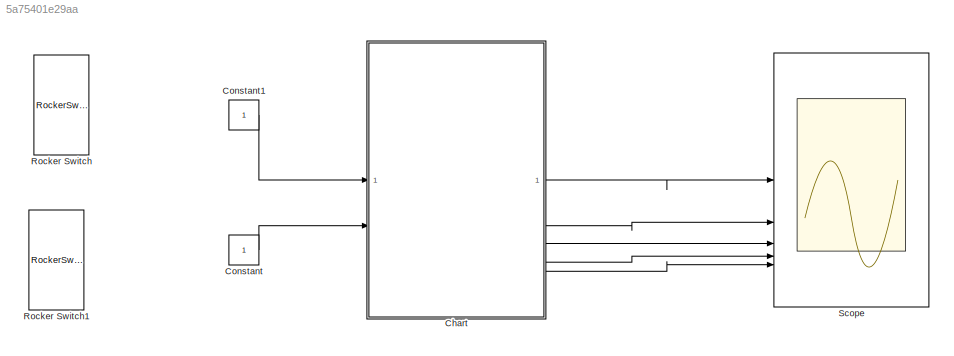
MODEL slx_5a75401e29aa
KIND model
CONFIG AbsTol = auto
CONFIG EnableMultiTasking = off
CONFIG FixedStep = auto
CONFIG MaxStep = auto
CONFIG MinStep = auto
CONFIG RelTol = 1e-3
CONFIG SampleTimeConstraint = Unconstrained
CONFIG SolverName = VariableStepAuto
CONFIG StartTime = 0.0
CONFIG StopTime = 10.0
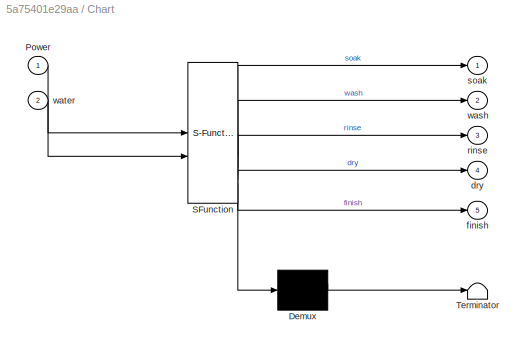
BLOCK [SubSystem] Chart
  ErrorFcn = Stateflow.Translate.translate
  PermitHierarchicalResolution = ExplicitOnly
  SFBlockType = Chart
  TreatAsAtomicUnit = on
BLOCK [Demux] Chart/ Demux 
  Outputs = 1
BLOCK [S-Function] Chart/ SFunction 
  EnableBusSupport = on
  FunctionName = sf_sfun
  PortCounts = [2 6]
  SFcnIsStateOwnerBlock = off
  SFunctionDeploymentMode = off
  Tag = Stateflow S-Function 3
BLOCK [Terminator] Chart/ Terminator 
BLOCK [Inport] Chart/Power
BLOCK [Outport] Chart/dry
  Port = 4
BLOCK [Outport] Chart/finish
  Port = 5
BLOCK [Outport] Chart/rinse
  Port = 3
BLOCK [Outport] Chart/soak
BLOCK [Outport] Chart/wash
  Port = 2
BLOCK [Inport] Chart/water
  Port = 2
BLOCK [Constant] Constant
BLOCK [Constant] Constant1
BLOCK [RockerSwitchBlock] Rocker Switch
BLOCK [RockerSwitchBlock] Rocker Switch1
BLOCK [Scope] Scope
  Floating = off
  NumInputPorts = 5
  ScopeSpecificationString = Simulink.scopes.TimeScopeBlockCfg('CurrentConfiguration', extmgr.ConfigurationSet(extmgr.Configuration('Core','General UI',true),extmgr.Configuration('Core','Source UI',true),extmgr.Configuration('Sources','WiredSimulink',true),extmgr.Configuration('Visuals','Time Domain',true,'SerializedDisplays',{struct('MinYLimReal','-0.125','MaxYLimReal','1.125','YLabelReal','','MinYLimMag','0.00000','MaxYLimM...<+1461ch>
LINE Chart:1 -> Scope:1
LINE Chart:2 -> Scope:2
LINE Chart:3 -> Scope:3
LINE Chart:4 -> Scope:4
LINE Chart:5 -> Scope:5
LINE Constant1:1 -> Chart:1
LINE Constant:1 -> Chart:2
CHART Chart states=7 transitions=9
  STATE_LABEL 'Power'
  STATE_LABEL 'water'
  STATE_LABEL 'soak\nentry:soak=1\n'
  STATE_LABEL 'wash\nentry:wash=1'
  STATE_LABEL 'rinse\nentry:rinse=1'
  STATE_LABEL 'dry\nentry:dry=1'
  STATE_LABEL 'finish\nentry:finish=1'
CHART  states=0 transitions=0
